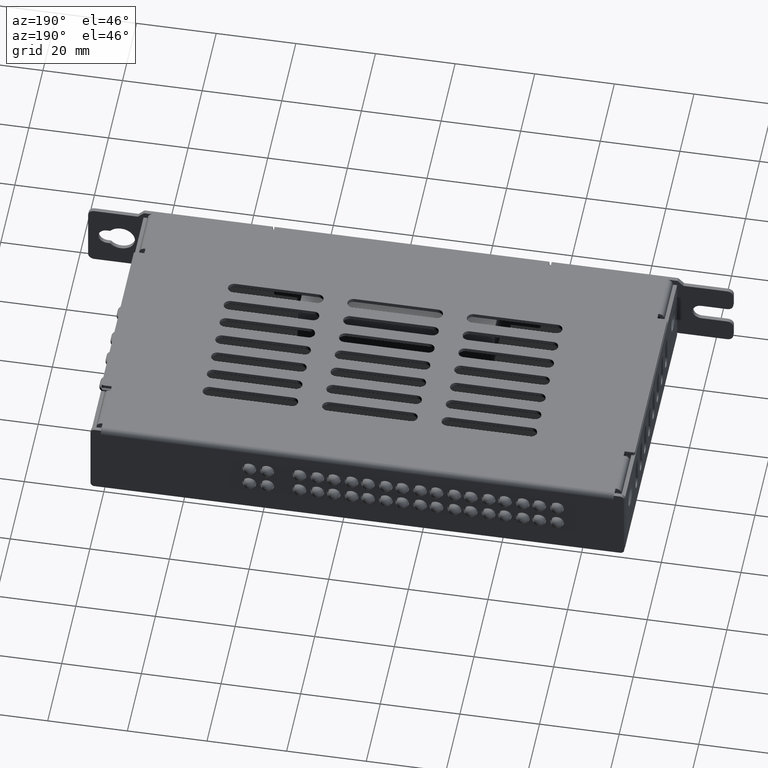
[diagram: clean part render]
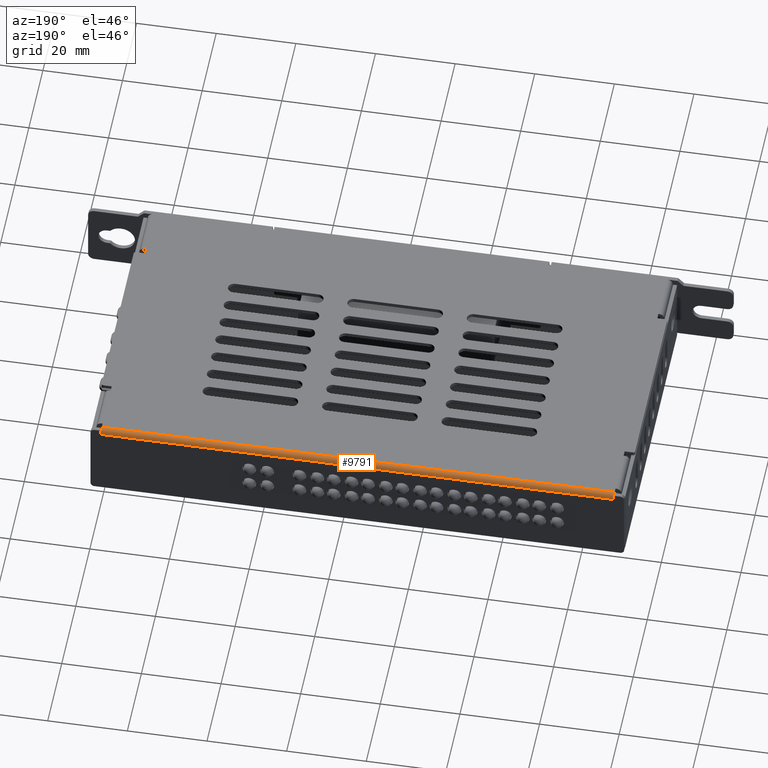
[diagram: same view with one face highlighted and labeled with its STEP entity id]
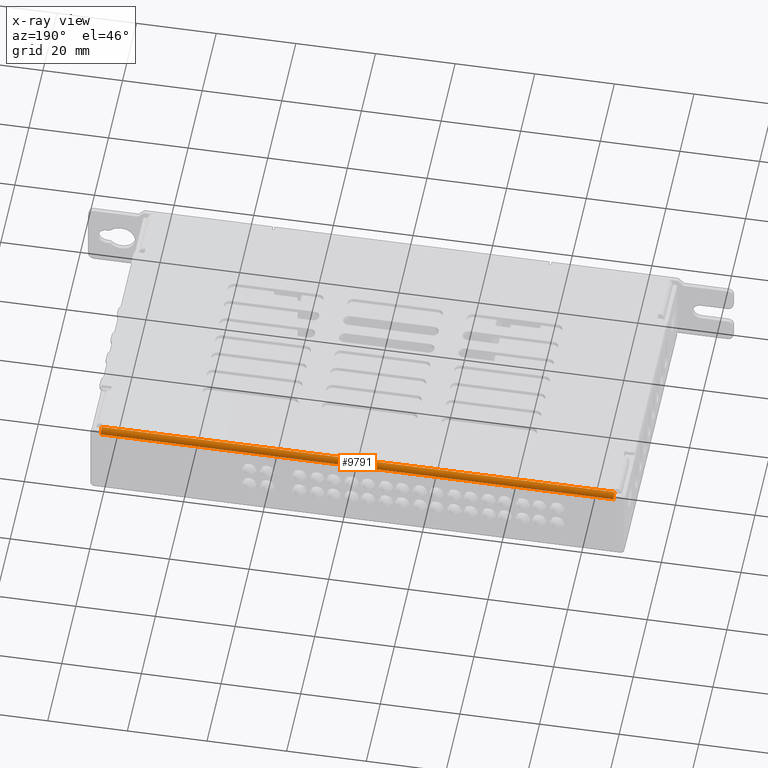
[diagram: x-ray of the same camera — body ghosted, the highlighted face saturated]
A machine part, auxiliary view. The second image highlights one B-rep face of the part: STEP entity #9791.
The next image is the same camera in x-ray: the body ghosted, the highlighted face saturated — about 0% of this face is hidden behind the body in this view.
In plain terms, the highlighted cylindrical surface (edge-blend (fillet) strip) has radius 1.3 mm, axis along (1, 0, 0).
Its self-contained STEP definition (entity closure, byte-faithful):
#6959 = VERTEX_POINT ( 'NONE', #17782 ) ;
#6990 = EDGE_CURVE ( 'NONE', #7003, #7010, #17883, .T. ) ;
#7002 = VERTEX_POINT ( 'NONE', #17859 ) ;
#7003 = VERTEX_POINT ( 'NONE', #17874 ) ;
#7006 = EDGE_CURVE ( 'NONE', #6959, #7002, #17855, .T. ) ;
#7010 = VERTEX_POINT ( 'NONE', #17919 ) ;
#7397 = EDGE_CURVE ( 'NONE', #7003, #6959, #18546, .T. ) ;
#7626 = EDGE_CURVE ( 'NONE', #7010, #7644, #18760, .T. ) ;
#7644 = VERTEX_POINT ( 'NONE', #18803 ) ;
#8108 = EDGE_CURVE ( 'NONE', #7644, #8110, #19627, .T. ) ;
#8110 = VERTEX_POINT ( 'NONE', #19629 ) ;
#9774 = ORIENTED_EDGE ( 'NONE', *, *, #7006, .F. ) ;
#9785 = EDGE_LOOP ( 'NONE', ( #9804, #9793, #9792, #9802, #9774, #9789 ) ) ;
#9789 = ORIENTED_EDGE ( 'NONE', *, *, #7397, .F. ) ;
#9791 = ADVANCED_FACE ( 'NONE', ( #22158 ), #22148, .T. ) ;
#9792 = ORIENTED_EDGE ( 'NONE', *, *, #8108, .T. ) ;
#9793 = ORIENTED_EDGE ( 'NONE', *, *, #7626, .T. ) ;
#9796 = EDGE_CURVE ( 'NONE', #7002, #8110, #22181, .T. ) ;
#9802 = ORIENTED_EDGE ( 'NONE', *, *, #9796, .F. ) ;
#9804 = ORIENTED_EDGE ( 'NONE', *, *, #6990, .T. ) ;
#16715 = CARTESIAN_POINT ( 'NONE',  ( 131.4000000000000100, 74.19999999999998900, 18.70000000000000300 ) ) ;
#16933 = DIRECTION ( 'NONE',  ( 0.0000000000000000000, 0.0000000000000000000, -1.000000000000000000 ) ) ;
#16938 = DIRECTION ( 'NONE',  ( 1.000000000000000000, 0.0000000000000000000, 0.0000000000000000000 ) ) ;
#17782 = CARTESIAN_POINT ( 'NONE',  ( 131.4000000000000100, 75.49999999999997200, 18.69999999999995000 ) ) ;
#17848 = CARTESIAN_POINT ( 'NONE',  ( 2.599999999999991200, 74.19999999999998900, 18.70000000000000300 ) ) ;
#17855 = CIRCLE ( 'NONE', #17878, 1.299999999999988700 ) ;
#17859 = CARTESIAN_POINT ( 'NONE',  ( 131.4000000000000100, 74.50000000000000000, 19.96491106406733700 ) ) ;
#17874 = CARTESIAN_POINT ( 'NONE',  ( 2.599999999999991200, 75.49999999999997200, 18.69999999999999600 ) ) ;
#17878 = AXIS2_PLACEMENT_3D ( 'NONE', #16715, #16938, #16933 ) ;
#17881 = DIRECTION ( 'NONE',  ( 0.0000000000000000000, 0.0000000000000000000, -1.000000000000000000 ) ) ;
#17882 = DIRECTION ( 'NONE',  ( 1.000000000000000000, 0.0000000000000000000, 0.0000000000000000000 ) ) ;
#17883 = CIRCLE ( 'NONE', #17891, 1.299999999999988700 ) ;
#17891 = AXIS2_PLACEMENT_3D ( 'NONE', #17848, #17882, #17881 ) ;
#17919 = CARTESIAN_POINT ( 'NONE',  ( 2.599999999999991200, 74.50000000000000000, 19.96491106406733700 ) ) ;
#18535 = DIRECTION ( 'NONE',  ( 1.000000000000000000, 0.0000000000000000000, 0.0000000000000000000 ) ) ;
#18536 = VECTOR ( 'NONE', #18535, 1000.000000000000000 ) ;
#18537 = CARTESIAN_POINT ( 'NONE',  ( 2.600000000000000500, 75.50000000000000000, 18.69999999999999600 ) ) ;
#18546 = LINE ( 'NONE', #18537, #18536 ) ;
#18752 = DIRECTION ( 'NONE',  ( 0.0000000000000000000, 0.0000000000000000000, -1.000000000000000000 ) ) ;
#18753 = DIRECTION ( 'NONE',  ( 1.000000000000000000, 0.0000000000000000000, 0.0000000000000000000 ) ) ;
#18754 = CARTESIAN_POINT ( 'NONE',  ( 2.599999999999991200, 74.19999999999998900, 18.70000000000000300 ) ) ;
#18760 = CIRCLE ( 'NONE', #18778, 1.299999999999988700 ) ;
#18778 = AXIS2_PLACEMENT_3D ( 'NONE', #18754, #18753, #18752 ) ;
#18803 = CARTESIAN_POINT ( 'NONE',  ( 2.599999999999991200, 74.19999999999998900, 19.99999999999998900 ) ) ;
#19624 = DIRECTION ( 'NONE',  ( 1.000000000000000000, 0.0000000000000000000, 0.0000000000000000000 ) ) ;
#19625 = VECTOR ( 'NONE', #19624, 1000.000000000000000 ) ;
#19626 = CARTESIAN_POINT ( 'NONE',  ( 2.600000000000000500, 74.19999999999998900, 20.00000000000001800 ) ) ;
#19627 = LINE ( 'NONE', #19626, #19625 ) ;
#19629 = CARTESIAN_POINT ( 'NONE',  ( 131.4000000000000100, 74.19999999999998900, 19.99999999999998900 ) ) ;
#22144 = AXIS2_PLACEMENT_3D ( 'NONE', #22185, #22186, #22183 ) ;
#22148 = CYLINDRICAL_SURFACE ( 'NONE', #22144, 1.299999999999988700 ) ;
#22158 = FACE_OUTER_BOUND ( 'NONE', #9785, .T. ) ;
#22177 = DIRECTION ( 'NONE',  ( 0.0000000000000000000, 0.0000000000000000000, -1.000000000000000000 ) ) ;
#22178 = DIRECTION ( 'NONE',  ( 1.000000000000000000, 0.0000000000000000000, 0.0000000000000000000 ) ) ;
#22179 = CARTESIAN_POINT ( 'NONE',  ( 131.4000000000000100, 74.19999999999998900, 18.70000000000000300 ) ) ;
#22180 = AXIS2_PLACEMENT_3D ( 'NONE', #22179, #22178, #22177 ) ;
#22181 = CIRCLE ( 'NONE', #22180, 1.299999999999988700 ) ;
#22183 = DIRECTION ( 'NONE',  ( 0.0000000000000000000, 0.0000000000000000000, -1.000000000000000000 ) ) ;
#22185 = CARTESIAN_POINT ( 'NONE',  ( -182.7990952965641900, 74.19999999999998900, 18.70000000000000300 ) ) ;
#22186 = DIRECTION ( 'NONE',  ( 1.000000000000000000, 0.0000000000000000000, 0.0000000000000000000 ) ) ;